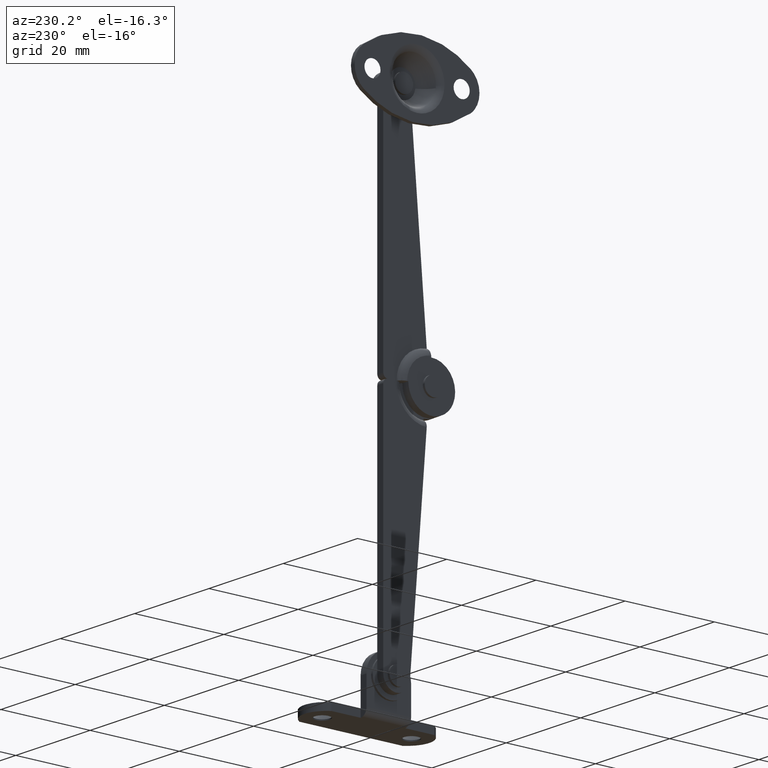
[diagram: clean part render]
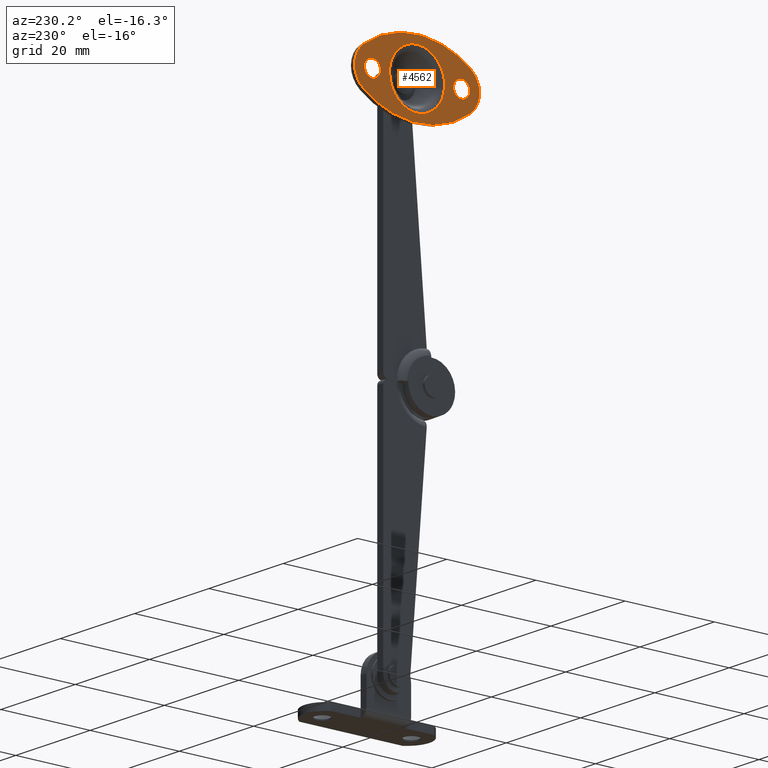
[diagram: same view with one face highlighted and labeled with its STEP entity id]
A machine part, auxiliary view. The second image highlights one B-rep face of the part: STEP entity #4562.
In plain terms, the highlighted face is a freeform B-spline surface patch.
Its self-contained STEP definition (entity closure, byte-faithful):
#3206=CARTESIAN_POINT('',(0.000000325456658,11.327099934901639,51.783921958610989));
#3207=VERTEX_POINT('',#3206);
#3213=CARTESIAN_POINT('',(0.0,10.0,51.199984988079073));
#3214=VERTEX_POINT('',#3213);
#3215=CARTESIAN_POINT('',(0.000000325456658,11.327099934901639,51.783921958610989));
#3216=CARTESIAN_POINT('',(0.000000281736693,11.148825005636040,51.588789125641519));
#3217=CARTESIAN_POINT('',(0.000000179127108,10.730418530683879,51.298025277124800));
#3218=CARTESIAN_POINT('',(0.000000057190139,10.233201648535241,51.199775145527333));
#3219=CARTESIAN_POINT('',(0.0,10.0,51.199984988079073));
#3220=B_SPLINE_CURVE_WITH_KNOTS('',3,(#3215,#3216,#3217,#3218,#3219),.UNSPECIFIED.,.F.,.U.,(4,1,4),(0.000000079336560,0.792765171615451,1.492298646531371),.UNSPECIFIED.);
#3221=EDGE_CURVE('',#3207,#3214,#3220,.T.);
#3223=CARTESIAN_POINT('',(0.0,8.199999988080963,52.999987613600112));
#3224=VERTEX_POINT('',#3223);
#3225=CARTESIAN_POINT('',(0.0,10.0,51.199984988079073));
#3226=CARTESIAN_POINT('',(0.0,9.764337883032997,51.199736378738379));
#3227=CARTESIAN_POINT('',(0.0,9.381653402798994,51.276286647566032));
#3228=CARTESIAN_POINT('',(0.0,8.929837151728821,51.532324066542621));
#3229=CARTESIAN_POINT('',(0.0,8.615028600521184,51.824751157620042));
#3230=CARTESIAN_POINT('',(0.0,8.408957005153088,52.133163815236820));
#3231=CARTESIAN_POINT('',(0.0,8.245092276629769,52.528814476224611));
#3232=CARTESIAN_POINT('',(0.0,8.199876109164507,52.808528712642371));
#3233=CARTESIAN_POINT('',(0.0,8.199999988080963,52.999987613600112));
#3234=B_SPLINE_CURVE_WITH_KNOTS('',3,(#3225,#3226,#3227,#3228,#3229,#3230,#3231,#3232,#3233),.UNSPECIFIED.,.F.,.U.,(4,1,1,1,1,1,4),(0.000000256639000,0.706876650141179,1.148704385113006,1.546266579772867,1.988081102434385,2.253177776699811,2.827505831656888),.UNSPECIFIED.);
#3235=EDGE_CURVE('',#3214,#3224,#3234,.T.);
#3237=CARTESIAN_POINT('',(0.0,10.0,54.799985011920931));
#3238=VERTEX_POINT('',#3237);
#3239=CARTESIAN_POINT('',(0.0,8.199999988080963,52.999987613600112));
#3240=CARTESIAN_POINT('',(0.0,8.199979783341856,53.132517535136529));
#3241=CARTESIAN_POINT('',(0.0,8.231024084525579,53.412311132431640));
#3242=CARTESIAN_POINT('',(0.0,8.370976454764639,53.803473801812991));
#3243=CARTESIAN_POINT('',(0.0,8.629487873683459,54.200959358713028));
#3244=CARTESIAN_POINT('',(0.0,8.953476967077201,54.487435407524210));
#3245=CARTESIAN_POINT('',(0.0,9.425855597964523,54.732459090409712));
#3246=CARTESIAN_POINT('',(0.0,9.764318371171600,54.800272107861687));
#3247=CARTESIAN_POINT('',(0.0,10.0,54.799985011920931));
#3248=B_SPLINE_CURVE_WITH_KNOTS('',3,(#3239,#3240,#3241,#3242,#3243,#3244,#3245,#3246,#3247),.UNSPECIFIED.,.F.,.U.,(4,1,1,1,1,1,4),(0.000000260210839,0.397594637353169,0.839424115789967,1.237044029892748,1.811345948324216,2.120627227565908,2.827502885446900),.UNSPECIFIED.);
#3249=EDGE_CURVE('',#3224,#3238,#3248,.T.);
#3251=CARTESIAN_POINT('',(-0.000000326579470,11.289971056415890,54.255361911316790));
#3252=VERTEX_POINT('',#3251);
#3253=CARTESIAN_POINT('',(0.0,10.0,54.799985011920931));
#3254=CARTESIAN_POINT('',(-0.000000064489955,10.254731798928370,54.800337354515342));
#3255=CARTESIAN_POINT('',(-0.000000185769218,10.733778258425151,54.696377676965170));
#3256=CARTESIAN_POINT('',(-0.000000286933659,11.133372267683900,54.416578646194232));
#3257=CARTESIAN_POINT('',(-0.000000326579470,11.289971056415890,54.255361911316790));
#3258=B_SPLINE_CURVE_WITH_KNOTS('',3,(#3253,#3254,#3255,#3256,#3257),.UNSPECIFIED.,.F.,.U.,(4,1,4),(0.000000066033471,0.764035777283070,1.438216181752771),.UNSPECIFIED.);
#3259=EDGE_CURVE('',#3238,#3252,#3258,.T.);
#3295=CARTESIAN_POINT('',(0.0,11.800000011919041,52.999982386399907));
#3296=VERTEX_POINT('',#3295);
#3297=CARTESIAN_POINT('',(-0.000000326579470,11.289971056415890,54.255361911316790));
#3298=CARTESIAN_POINT('',(-0.000000286132579,11.441484224097019,54.099882939404417));
#3299=CARTESIAN_POINT('',(-0.000000184411744,11.703482418574570,53.708865392486352));
#3300=CARTESIAN_POINT('',(-0.000000064008120,11.800296937028870,53.246031029593873));
#3301=CARTESIAN_POINT('',(0.0,11.800000011919041,52.999982386399907));
#3302=B_SPLINE_CURVE_WITH_KNOTS('',3,(#3297,#3298,#3299,#3300,#3301),.UNSPECIFIED.,.F.,.U.,(4,1,4),(0.000000055677218,0.651244735510101,1.389290084098628),.UNSPECIFIED.);
#3303=EDGE_CURVE('',#3252,#3296,#3302,.T.);
#3305=CARTESIAN_POINT('',(0.0,11.800000011919041,52.999982386399907));
#3306=CARTESIAN_POINT('',(0.000000055839829,11.800152906506201,52.791338183370748));
#3307=CARTESIAN_POINT('',(0.000000174922320,11.721717228682399,52.346389383056000));
#3308=CARTESIAN_POINT('',(0.000000278840985,11.487035920301009,51.958100087384452));
#3309=CARTESIAN_POINT('',(0.000000325456658,11.327099934901639,51.783921958610989));
#3310=B_SPLINE_CURVE_WITH_KNOTS('',3,(#3305,#3306,#3307,#3308,#3309),.UNSPECIFIED.,.F.,.U.,(4,1,4),(0.000000059464476,0.625895268499991,1.335204521011124),.UNSPECIFIED.);
#3311=EDGE_CURVE('',#3296,#3207,#3310,.T.);
#3405=CARTESIAN_POINT('',(0.000000325456658,-8.672900065098363,51.783921958610989));
#3406=VERTEX_POINT('',#3405);
#3412=CARTESIAN_POINT('',(0.0,-10.0,51.199984988079073));
#3413=VERTEX_POINT('',#3412);
#3414=CARTESIAN_POINT('',(0.000000325456658,-8.672900065098363,51.783921958610989));
#3415=CARTESIAN_POINT('',(0.000000291997059,-8.809336762302637,51.634831839390159));
#3416=CARTESIAN_POINT('',(0.000000221749781,-9.095780921025378,51.412501361499551));
#3417=CARTESIAN_POINT('',(0.000000106736099,-9.564767024588695,51.234571619047983));
#3418=CARTESIAN_POINT('',(0.000000034308992,-9.860099772342915,51.199962559076717));
#3419=CARTESIAN_POINT('',(0.0,-10.0,51.199984988079073));
#3420=B_SPLINE_CURVE_WITH_KNOTS('',3,(#3414,#3415,#3416,#3417,#3418,#3419),.UNSPECIFIED.,.F.,.U.,(4,1,1,4),(0.000000079336230,0.606259173206327,1.072587597331597,1.492298646531383),.UNSPECIFIED.);
#3421=EDGE_CURVE('',#3406,#3413,#3420,.T.);
#3423=CARTESIAN_POINT('',(0.0,-11.800000011919041,52.999987613600091));
#3424=VERTEX_POINT('',#3423);
#3425=CARTESIAN_POINT('',(0.0,-10.0,51.199984988079073));
#3426=CARTESIAN_POINT('',(0.0,-10.191435330366961,51.199899640092433));
#3427=CARTESIAN_POINT('',(0.0,-10.603783926193151,51.266304133361857));
#3428=CARTESIAN_POINT('',(0.0,-11.062986067881591,51.518969531641282));
#3429=CARTESIAN_POINT('',(0.0,-11.401439366413401,51.849447146522543));
#3430=CARTESIAN_POINT('',(0.0,-11.607527895496389,52.157836043816850));
#3431=CARTESIAN_POINT('',(0.0,-11.761967194902381,52.558224921947030));
#3432=CARTESIAN_POINT('',(0.0,-11.800050046142481,52.837994943183851));
#3433=CARTESIAN_POINT('',(0.0,-11.800000011919041,52.999987613600091));
#3434=B_SPLINE_CURVE_WITH_KNOTS('',3,(#3425,#3426,#3427,#3428,#3429,#3430,#3431,#3432,#3433),.UNSPECIFIED.,.F.,.U.,(4,1,1,1,1,1,4),(0.000000256638907,0.574328313050018,1.237045312239989,1.546266579772505,1.988081102434117,2.341532062373418,2.827505831656868),.UNSPECIFIED.);
#3435=EDGE_CURVE('',#3413,#3424,#3434,.T.);
#3437=CARTESIAN_POINT('',(0.0,-10.0,54.799985011920931));
#3438=VERTEX_POINT('',#3437);
#3439=CARTESIAN_POINT('',(0.0,-11.800000011919041,52.999987613600091));
#3440=CARTESIAN_POINT('',(0.0,-11.800110153440819,53.191438147486572));
#3441=CARTESIAN_POINT('',(0.0,-11.745419780332890,53.530065748126347));
#3442=CARTESIAN_POINT('',(0.0,-11.504468083959260,54.039859136791847));
#3443=CARTESIAN_POINT('',(0.0,-11.147734955100409,54.423867920241477));
#3444=CARTESIAN_POINT('',(0.0,-10.618323968412589,54.723651476891973));
#3445=CARTESIAN_POINT('',(0.0,-10.235666826755470,54.800255595410263));
#3446=CARTESIAN_POINT('',(0.0,-10.0,54.799985011920931));
#3447=B_SPLINE_CURVE_WITH_KNOTS('',3,(#3439,#3440,#3441,#3442,#3443,#3444,#3445,#3446),.UNSPECIFIED.,.F.,.U.,(4,1,1,1,1,4),(0.000000260216425,0.574327717558769,1.016157196211677,1.678799952748427,2.120627227566562,2.827502885446859),.UNSPECIFIED.);
#3448=EDGE_CURVE('',#3424,#3438,#3447,.T.);
#3450=CARTESIAN_POINT('',(-0.000000326579470,-8.710028943584108,54.255361911316783));
#3451=VERTEX_POINT('',#3450);
#3452=CARTESIAN_POINT('',(0.0,-10.0,54.799985011920931));
#3453=CARTESIAN_POINT('',(-0.000000056900005,-9.775248092087699,54.800197047549439));
#3454=CARTESIAN_POINT('',(-0.000000178219852,-9.296041325867000,54.708952147525160));
#3455=CARTESIAN_POINT('',(-0.000000281669247,-8.887421869933558,54.438181445907929));
#3456=CARTESIAN_POINT('',(-0.000000326579470,-8.710028943584108,54.255361911316783));
#3457=B_SPLINE_CURVE_WITH_KNOTS('',3,(#3452,#3453,#3454,#3455,#3456),.UNSPECIFIED.,.F.,.U.,(4,1,4),(0.000000066032677,0.674180470568263,1.438216181752799),.UNSPECIFIED.);
#3458=EDGE_CURVE('',#3438,#3451,#3457,.T.);
#3494=CARTESIAN_POINT('',(0.0,-8.199999988080963,52.999982386399907));
#3495=VERTEX_POINT('',#3494);
#3496=CARTESIAN_POINT('',(-0.000000326579470,-8.710028943584108,54.255361911316783));
#3497=CARTESIAN_POINT('',(-0.000000280761823,-8.538212537788725,54.079237600817862));
#3498=CARTESIAN_POINT('',(-0.000000176909432,-8.284802419742261,53.680026321674440));
#3499=CARTESIAN_POINT('',(-0.000000056476159,-8.199851561432341,53.217078002760310));
#3500=CARTESIAN_POINT('',(0.0,-8.199999988080963,52.999982386399907));
#3501=B_SPLINE_CURVE_WITH_KNOTS('',3,(#3496,#3497,#3498,#3499,#3500),.UNSPECIFIED.,.F.,.U.,(4,1,4),(0.000000055675659,0.738045404195013,1.389290084098615),.UNSPECIFIED.);
#3502=EDGE_CURVE('',#3451,#3495,#3501,.T.);
#3504=CARTESIAN_POINT('',(0.0,-8.199999988080963,52.999982386399907));
#3505=CARTESIAN_POINT('',(0.000000048388529,-8.199942999787432,52.819179791891223));
#3506=CARTESIAN_POINT('',(0.000000167501054,-8.267561942962223,52.374118751482897));
#3507=CARTESIAN_POINT('',(0.000000273371024,-8.494021060065402,51.978538439070562));
#3508=CARTESIAN_POINT('',(0.000000325456658,-8.672900065098363,51.783921958610989));
#3509=B_SPLINE_CURVE_WITH_KNOTS('',3,(#3504,#3505,#3506,#3507,#3508),.UNSPECIFIED.,.F.,.U.,(4,1,4),(0.000000059464371,0.542430373951011,1.335204521011109),.UNSPECIFIED.);
#3510=EDGE_CURVE('',#3495,#3406,#3509,.T.);
#3570=CARTESIAN_POINT('',(2.538452E-016,1.943735916808409,47.156445097477501));
#3571=VERTEX_POINT('',#3570);
#3582=CARTESIAN_POINT('',(0.0,0.0,46.841651786736421));
#3583=VERTEX_POINT('',#3582);
#3584=CARTESIAN_POINT('',(0.0,0.0,46.841651786736421));
#3585=CARTESIAN_POINT('',(-1.448487E-019,0.659206873345066,46.841472159917629));
#3586=CARTESIAN_POINT('',(8.585543E-017,1.318297280525808,46.948121073274088));
#3587=CARTESIAN_POINT('',(2.538452E-016,1.943735916808409,47.156445097477501));
#3588=B_SPLINE_CURVE_WITH_KNOTS('',3,(#3584,#3585,#3586,#3587),.UNSPECIFIED.,.F.,.U.,(4,4),(4.983356E-009,1.977555652944862),.UNSPECIFIED.);
#3589=EDGE_CURVE('',#3583,#3571,#3588,.T.);
#3591=CARTESIAN_POINT('',(0.0,-6.158333213263314,52.999983611340042));
#3592=VERTEX_POINT('',#3591);
#3593=CARTESIAN_POINT('',(0.0,-6.158333213263314,52.999983611340042));
#3594=CARTESIAN_POINT('',(0.0,-6.158400465675913,52.571731930718997));
#3595=CARTESIAN_POINT('',(0.0,-6.081804746144651,51.841213542186203));
#3596=CARTESIAN_POINT('',(0.0,-5.765224042762286,50.749497279818982));
#3597=CARTESIAN_POINT('',(0.0,-5.232394794268921,49.657525167962113));
#3598=CARTESIAN_POINT('',(0.0,-4.534569217545101,48.785625667973967));
#3599=CARTESIAN_POINT('',(0.0,-3.722029146854769,48.067294075988777));
#3600=CARTESIAN_POINT('',(0.0,-2.771693631674630,47.440402118526009));
#3601=CARTESIAN_POINT('',(0.0,-1.461105261889368,46.953345505462948));
#3602=CARTESIAN_POINT('',(0.0,-0.453438101484194,46.841597029456992));
#3603=CARTESIAN_POINT('',(0.0,0.0,46.841651786736421));
#3604=B_SPLINE_CURVE_WITH_KNOTS('',3,(#3593,#3594,#3595,#3596,#3597,#3598,#3599,#3600,#3601,#3602,#3603),.UNSPECIFIED.,.F.,.U.,(4,1,1,1,1,1,1,1,4),(0.000000135643356,1.284747954001857,2.191659289131896,3.400861719303401,4.912307453604847,5.516927133563766,6.650555849525466,8.313218443360965,9.673547104930842),.UNSPECIFIED.);
#3605=EDGE_CURVE('',#3592,#3583,#3604,.T.);
#3607=CARTESIAN_POINT('',(0.0,0.0,59.158318213263357));
#3608=VERTEX_POINT('',#3607);
#3609=CARTESIAN_POINT('',(0.0,0.0,59.158318213263357));
#3610=CARTESIAN_POINT('',(0.0,-0.428251975254345,59.158383442072463));
#3611=CARTESIAN_POINT('',(0.0,-1.234335854518611,59.073867192650660));
#3612=CARTESIAN_POINT('',(0.0,-2.515095143053540,58.676933215591610));
#3613=CARTESIAN_POINT('',(0.0,-3.572179531039486,58.069441428915702));
#3614=CARTESIAN_POINT('',(0.0,-4.518312926489368,57.232751696101772));
#3615=CARTESIAN_POINT('',(0.0,-5.162202913019085,56.418032129228003));
#3616=CARTESIAN_POINT('',(0.0,-5.709981331720646,55.393259718701607));
#3617=CARTESIAN_POINT('',(0.0,-6.068652671688139,54.284721079399638));
#3618=CARTESIAN_POINT('',(0.0,-6.158387351042734,53.428231818226052));
#3619=CARTESIAN_POINT('',(0.0,-6.158333213263314,52.999983611340042));
#3620=B_SPLINE_CURVE_WITH_KNOTS('',3,(#3609,#3610,#3611,#3612,#3613,#3614,#3615,#3616,#3617,#3618,#3619),.UNSPECIFIED.,.F.,.U.,(4,1,1,1,1,1,1,1,4),(0.000000135139752,1.284748161569384,2.418387892829644,4.005486733782486,4.912308247817526,6.197103284736764,7.104010736364192,8.388804722746993,9.673548670283964),.UNSPECIFIED.);
#3621=EDGE_CURVE('',#3608,#3592,#3620,.T.);
#3623=CARTESIAN_POINT('',(2.481351E-016,5.945141804688516,54.606333911172307));
#3624=VERTEX_POINT('',#3623);
#3625=CARTESIAN_POINT('',(2.481351E-016,5.945141804688516,54.606333911172307));
#3626=CARTESIAN_POINT('',(2.260753E-016,5.835841958081236,55.011016522505081));
#3627=CARTESIAN_POINT('',(1.788882E-016,5.504070408626157,55.876654432184289));
#3628=CARTESIAN_POINT('',(1.157832E-016,4.727999921917844,57.034300450120632));
#3629=CARTESIAN_POINT('',(6.587997E-017,3.735976539767141,57.949764660213873));
#3630=CARTESIAN_POINT('',(3.337749E-017,2.743710595824842,58.546015517185040));
#3631=CARTESIAN_POINT('',(7.506861E-018,1.529885597789539,59.020606501775717));
#3632=CARTESIAN_POINT('',(-1.660127E-020,0.607857591120056,59.158622759874532));
#3633=CARTESIAN_POINT('',(0.0,0.0,59.158318213263357));
#3634=B_SPLINE_CURVE_WITH_KNOTS('',3,(#3625,#3626,#3627,#3628,#3629,#3630,#3631,#3632,#3633),.UNSPECIFIED.,.F.,.U.,(4,1,1,1,1,1,4),(0.000000087399266,1.257555902902624,2.766644703230433,4.149925604277309,5.281733836987950,6.224919355878913,8.048376297208487),.UNSPECIFIED.);
#3635=EDGE_CURVE('',#3624,#3608,#3634,.T.);
#3724=CARTESIAN_POINT('',(2.538452E-016,1.943735916808409,47.156445097477501));
#3725=CARTESIAN_POINT('',(2.075693E-016,2.450513800177853,47.324855969135143));
#3726=CARTESIAN_POINT('',(1.259310E-016,3.441794267751047,47.805365035208283));
#3727=CARTESIAN_POINT('',(5.661466E-017,4.604999531260622,48.819808985032907));
#3728=CARTESIAN_POINT('',(3.586757E-017,5.375250261090402,49.919549368613822));
#3729=CARTESIAN_POINT('',(4.627125E-017,5.894013041644010,51.075015064016277));
#3730=CARTESIAN_POINT('',(8.504905E-017,6.151109664117184,52.219761901568191));
#3731=CARTESIAN_POINT('',(1.553073E-016,6.175755895900143,53.461750354325609));
#3732=CARTESIAN_POINT('',(2.127879E-016,6.052828445669467,54.207978400807363));
#3733=CARTESIAN_POINT('',(2.481351E-016,5.945141804688516,54.606333911172307));
#3734=B_SPLINE_CURVE_WITH_KNOTS('',3,(#3724,#3725,#3726,#3727,#3728,#3729,#3730,#3731,#3732,#3733),.UNSPECIFIED.,.F.,.U.,(4,1,1,1,1,1,1,4),(0.000000129885139,1.602064144274200,3.276979493245977,4.587790800003868,5.607219292725119,7.063677463786425,8.083178235256098,9.321139982492534),.UNSPECIFIED.);
#3735=EDGE_CURVE('',#3571,#3624,#3734,.T.);
#4304=CARTESIAN_POINT('',(0.0,12.000001215909680,48.999985911932313));
#4305=VERTEX_POINT('',#4304);
#4311=CARTESIAN_POINT('',(0.0,12.000000303977441,56.999984772016802));
#4312=VERTEX_POINT('',#4311);
#4313=CARTESIAN_POINT('',(0.0,12.000001215909680,48.999985911932313));
#4314=CARTESIAN_POINT('',(0.0,12.231825464028351,49.173830727600190));
#4315=CARTESIAN_POINT('',(0.0,12.701257852163360,49.594329944752573));
#4316=CARTESIAN_POINT('',(0.0,13.364168523325850,50.462474613122701));
#4317=CARTESIAN_POINT('',(0.0,13.794608504637569,51.444928574215062));
#4318=CARTESIAN_POINT('',(0.0,14.001642160520900,52.490556629896091));
#4319=CARTESIAN_POINT('',(0.0,14.015400587616480,53.437065362815787));
#4320=CARTESIAN_POINT('',(0.0,13.801885055498319,54.557762563934673));
#4321=CARTESIAN_POINT('',(0.0,13.215861540558199,55.844518195588812));
#4322=CARTESIAN_POINT('',(0.0,12.483306438308290,56.638120363729023));
#4323=CARTESIAN_POINT('',(0.0,12.000000303977441,56.999984772016802));
#4324=B_SPLINE_CURVE_WITH_KNOTS('',3,(#4313,#4314,#4315,#4316,#4317,#4318,#4319,#4320,#4321,#4322,#4323),.UNSPECIFIED.,.F.,.U.,(4,1,1,1,1,1,1,1,4),(0.000000195454961,0.869308918858657,1.883574256009494,3.260056615089278,4.056960387891579,5.071143077461089,6.085403843443938,7.461895374444024,9.273031385396067),.UNSPECIFIED.);
#4325=EDGE_CURVE('',#4305,#4312,#4324,.T.);
#4366=CARTESIAN_POINT('',(0.0,-12.000000653043241,48.999985489782503));
#4367=VERTEX_POINT('',#4366);
#4373=CARTESIAN_POINT('',(0.0,-12.000000653043241,48.999985489782503));
#4374=CARTESIAN_POINT('',(0.0,-11.088431409833570,48.316191616007181));
#4375=CARTESIAN_POINT('',(0.0,-9.147966683624526,47.105067580636728));
#4376=CARTESIAN_POINT('',(0.0,-6.282256806737763,45.936764085900514));
#4377=CARTESIAN_POINT('',(0.0,-3.478291536162068,45.246737638790243));
#4378=CARTESIAN_POINT('',(0.0,-1.073966497599873,44.979732874058442));
#4379=CARTESIAN_POINT('',(0.0,1.476315619671337,45.005386612562418));
#4380=CARTESIAN_POINT('',(0.0,4.008046216614953,45.338161511609542));
#4381=CARTESIAN_POINT('',(0.0,6.597504423134740,46.058968841506143));
#4382=CARTESIAN_POINT('',(0.0,9.316494051432063,47.215562314402547));
#4383=CARTESIAN_POINT('',(0.0,11.034822118756910,48.275939204635463));
#4384=CARTESIAN_POINT('',(0.0,12.000001215909680,48.999985911932313));
#4385=B_SPLINE_CURVE_WITH_KNOTS('',3,(#4373,#4374,#4375,#4376,#4377,#4378,#4379,#4380,#4381,#4382,#4383,#4384),.UNSPECIFIED.,.F.,.U.,(4,1,1,1,1,1,1,1,1,4),(5.715076E-009,3.418595956369991,6.837231402335281,9.250375432228960,12.065699556057471,14.076644774416939,16.891965377310321,19.707308975084540,22.120457302265699,25.740155110707889),.UNSPECIFIED.);
#4386=EDGE_CURVE('',#4367,#4305,#4385,.T.);
#4422=CARTESIAN_POINT('',(0.0,-12.000000373790600,56.999984719657000));
#4423=VERTEX_POINT('',#4422);
#4429=CARTESIAN_POINT('',(0.0,-12.000000373790600,56.999984719657000));
#4430=CARTESIAN_POINT('',(0.0,-12.444606155747771,56.667009489567000));
#4431=CARTESIAN_POINT('',(0.0,-13.051748633669551,56.028111765552659));
#4432=CARTESIAN_POINT('',(0.0,-13.667959528914951,54.899814576093327));
#4433=CARTESIAN_POINT('',(0.0,-13.952865473765449,53.918426082937202));
#4434=CARTESIAN_POINT('',(0.0,-14.024723907166409,52.927191029886579));
#4435=CARTESIAN_POINT('',(0.0,-13.936361532959619,52.059067294109973));
#4436=CARTESIAN_POINT('',(0.0,-13.653184625200490,51.055915068741811));
#4437=CARTESIAN_POINT('',(0.0,-13.057248022363259,49.964765331212213));
#4438=CARTESIAN_POINT('',(0.0,-12.386478616457170,49.289638630800980));
#4439=CARTESIAN_POINT('',(0.0,-12.000000653043241,48.999985489782503));
#4440=B_SPLINE_CURVE_WITH_KNOTS('',3,(#4429,#4430,#4431,#4432,#4433,#4434,#4435,#4436,#4437,#4438,#4439),.UNSPECIFIED.,.F.,.U.,(4,1,1,1,1,1,1,1,4),(0.000000195436794,1.666234245385239,2.608048169702245,3.839634324835384,4.708919882365914,5.578272728533993,6.447652231343886,7.824143853838828,9.273032001728938),.UNSPECIFIED.);
#4441=EDGE_CURVE('',#4423,#4367,#4440,.T.);
#4476=CARTESIAN_POINT('',(0.0,12.000000303977441,56.999984772016802));
#4477=CARTESIAN_POINT('',(0.0,10.659616206308030,58.005861129559797));
#4478=CARTESIAN_POINT('',(0.0,8.311091675898348,59.342842277859162));
#4479=CARTESIAN_POINT('',(0.0,4.989334711432313,60.431414534335289));
#4480=CARTESIAN_POINT('',(0.0,2.281013749983844,60.926974266410149));
#4481=CARTESIAN_POINT('',(0.0,-0.806184517585016,61.082516826806398));
#4482=CARTESIAN_POINT('',(0.0,-3.882676839569483,60.709464270963608));
#4483=CARTESIAN_POINT('',(0.0,-6.721089155127938,59.888399644398653));
#4484=CARTESIAN_POINT('',(0.0,-9.316490440670892,58.784406039694836));
#4485=CARTESIAN_POINT('',(0.0,-11.034825756244080,57.724038021653719));
#4486=CARTESIAN_POINT('',(0.0,-12.000000373790600,56.999984719657000));
#4487=B_SPLINE_CURVE_WITH_KNOTS('',3,(#4476,#4477,#4478,#4479,#4480,#4481,#4482,#4483,#4484,#4485,#4486),.UNSPECIFIED.,.F.,.U.,(4,1,1,1,1,1,1,1,4),(5.724313E-009,5.027364753509382,8.043805276401368,10.456940589436890,13.272266650228429,17.294155016431962,19.707307835069720,22.120456022655461,25.740153621707879),.UNSPECIFIED.);
#4488=EDGE_CURVE('',#4312,#4423,#4487,.T.);
#4528=CARTESIAN_POINT('',(0.0,-15.398607644734380,61.799237358431768));
#4529=CARTESIAN_POINT('',(0.0,15.398569593129130,61.799237358431768));
#4530=CARTESIAN_POINT('',(0.0,-15.398607644734380,44.200770120968748));
#4531=CARTESIAN_POINT('',(0.0,15.398569593129130,44.200770120968748));
#4532=B_SPLINE_SURFACE_WITH_KNOTS('',1,1,((#4528,#4530),(#4529,#4531)),.UNSPECIFIED.,.F.,.F.,.U.,(2,2),(2,2),(0.0,30.797177237863501),(0.0,17.598467237463019),.UNSPECIFIED.);
#4533=ORIENTED_EDGE('',*,*,#4488,.F.);
#4534=ORIENTED_EDGE('',*,*,#4325,.F.);
#4535=ORIENTED_EDGE('',*,*,#4386,.F.);
#4536=ORIENTED_EDGE('',*,*,#4441,.F.);
#4537=EDGE_LOOP('',(#4533,#4534,#4535,#4536));
#4538=FACE_OUTER_BOUND('',#4537,.T.);
#4539=ORIENTED_EDGE('',*,*,#3635,.T.);
#4540=ORIENTED_EDGE('',*,*,#3621,.T.);
#4541=ORIENTED_EDGE('',*,*,#3605,.T.);
#4542=ORIENTED_EDGE('',*,*,#3589,.T.);
#4543=ORIENTED_EDGE('',*,*,#3735,.T.);
#4544=EDGE_LOOP('',(#4539,#4540,#4541,#4542,#4543));
#4545=FACE_BOUND('',#4544,.T.);
#4546=ORIENTED_EDGE('',*,*,#3235,.F.);
#4547=ORIENTED_EDGE('',*,*,#3221,.F.);
#4548=ORIENTED_EDGE('',*,*,#3311,.F.);
#4549=ORIENTED_EDGE('',*,*,#3303,.F.);
#4550=ORIENTED_EDGE('',*,*,#3259,.F.);
#4551=ORIENTED_EDGE('',*,*,#3249,.F.);
#4552=EDGE_LOOP('',(#4546,#4547,#4548,#4549,#4550,#4551));
#4553=FACE_BOUND('',#4552,.T.);
#4554=ORIENTED_EDGE('',*,*,#3435,.F.);
#4555=ORIENTED_EDGE('',*,*,#3421,.F.);
#4556=ORIENTED_EDGE('',*,*,#3510,.F.);
#4557=ORIENTED_EDGE('',*,*,#3502,.F.);
#4558=ORIENTED_EDGE('',*,*,#3458,.F.);
#4559=ORIENTED_EDGE('',*,*,#3448,.F.);
#4560=EDGE_LOOP('',(#4554,#4555,#4556,#4557,#4558,#4559));
#4561=FACE_BOUND('',#4560,.T.);
#4562=ADVANCED_FACE('',(#4538,#4545,#4553,#4561),#4532,.T.);